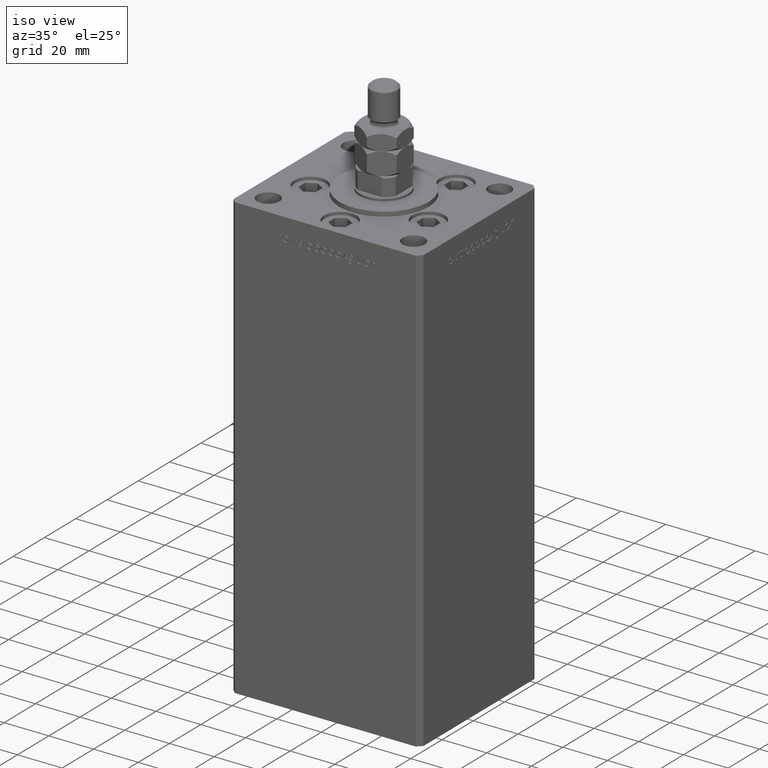
[diagram: clean part render]
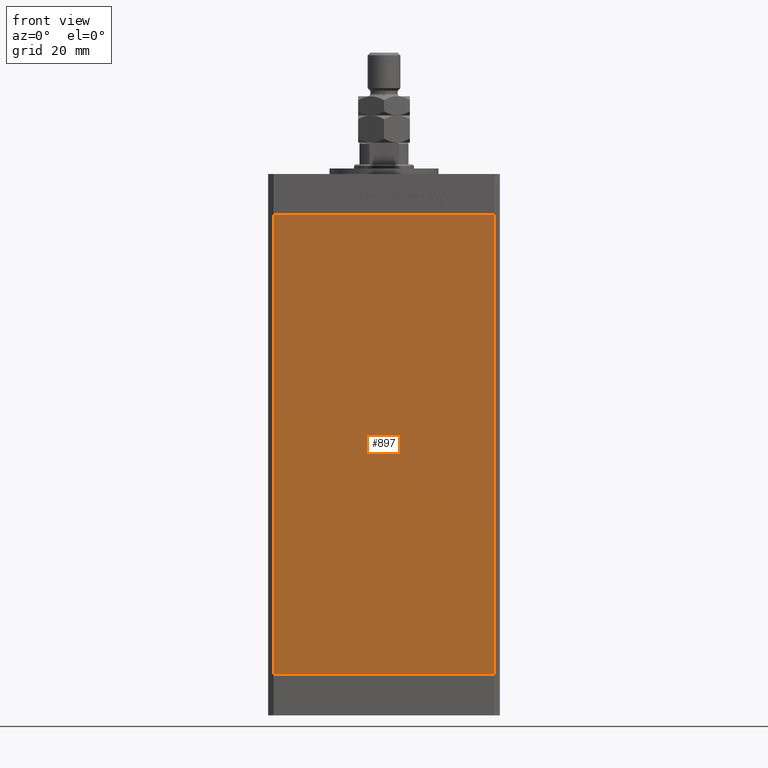
[diagram: tour spotlight — one face highlighted and labeled with its STEP entity id]
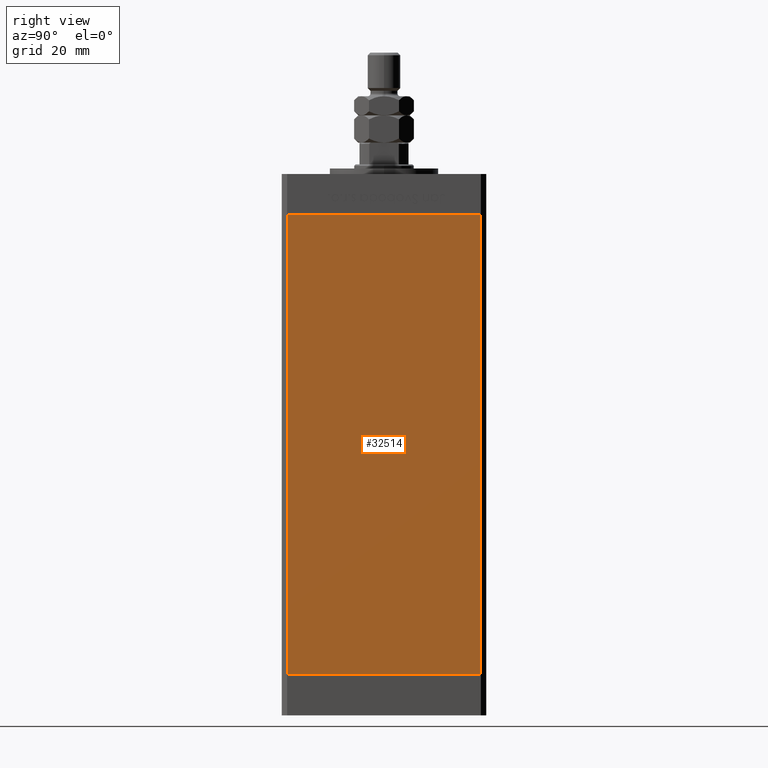
[diagram: tour spotlight — one face highlighted and labeled with its STEP entity id]
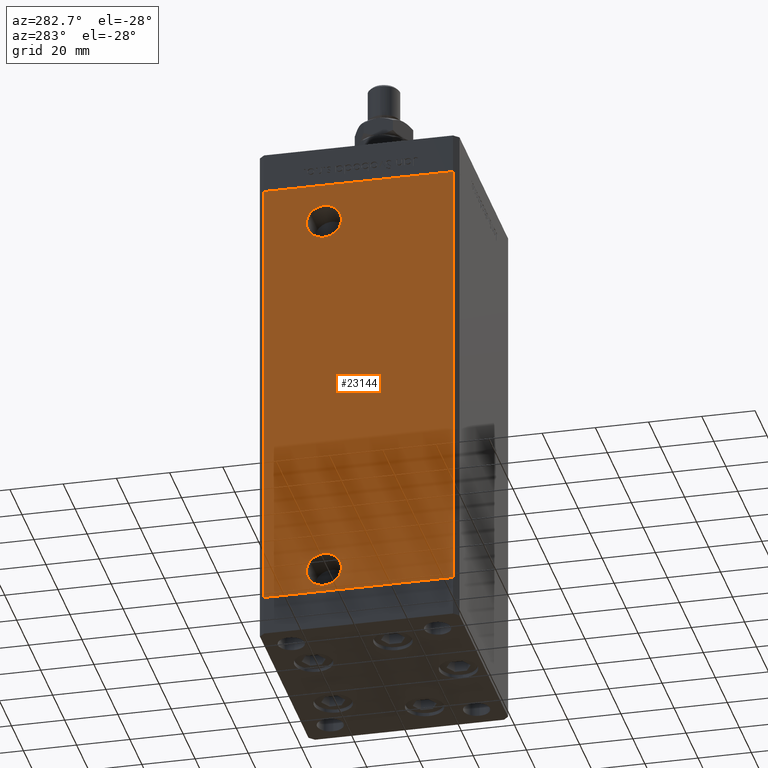
[diagram: tour spotlight — one face highlighted and labeled with its STEP entity id]
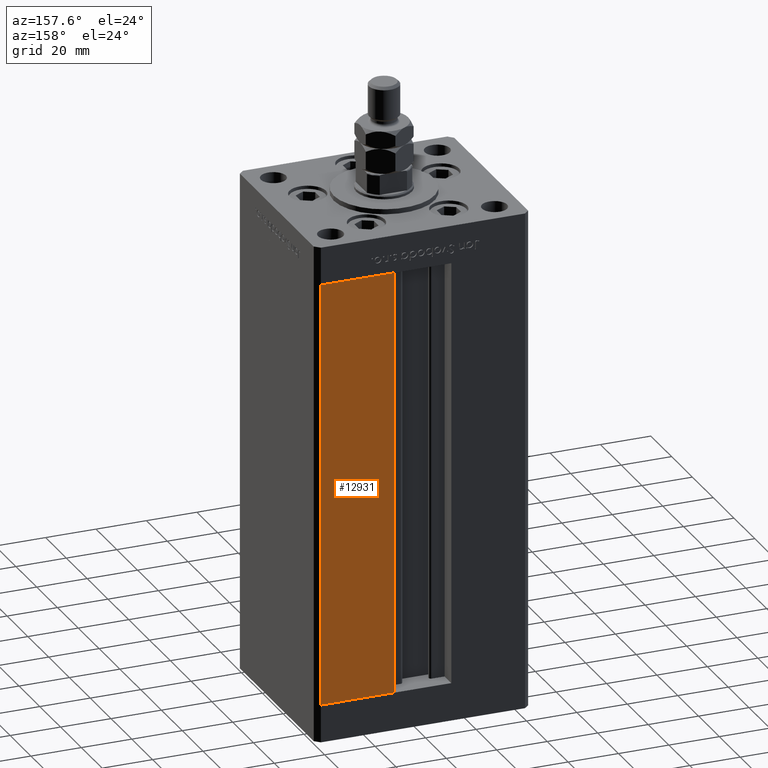
[diagram: tour spotlight — one face highlighted and labeled with its STEP entity id]
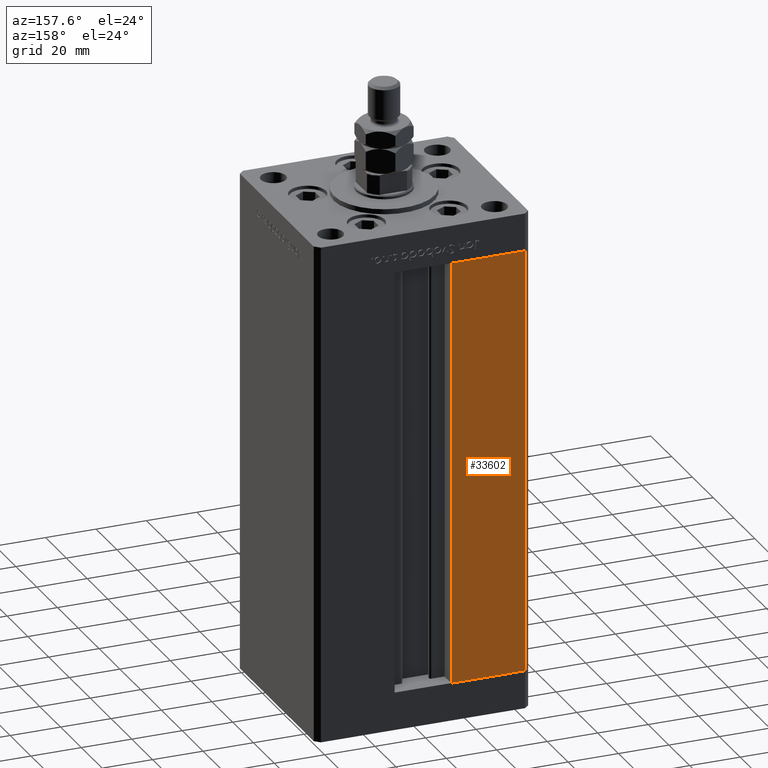
[diagram: tour spotlight — one face highlighted and labeled with its STEP entity id]
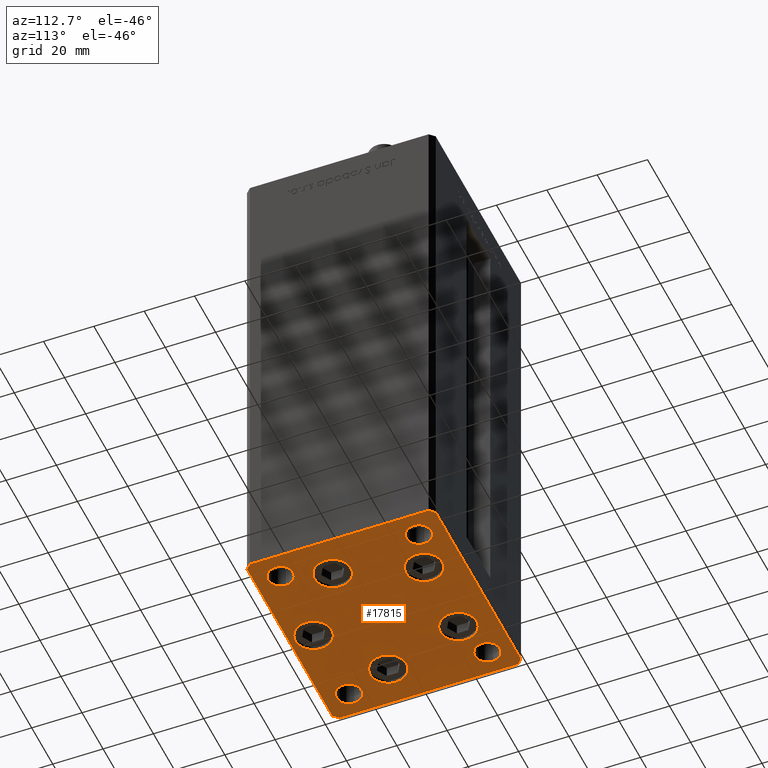
[diagram: tour spotlight — one face highlighted and labeled with its STEP entity id]
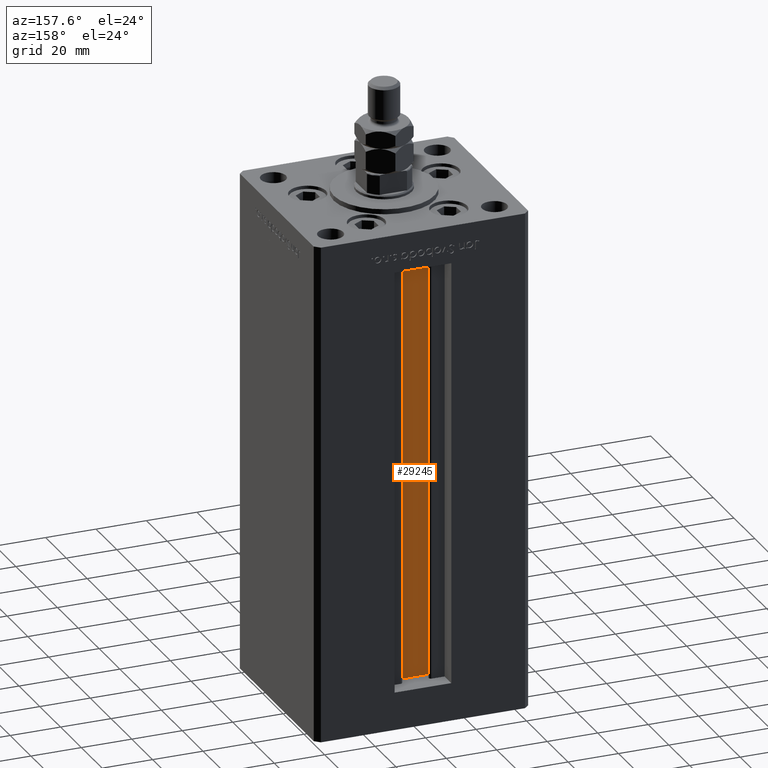
[diagram: tour spotlight — one face highlighted and labeled with its STEP entity id]
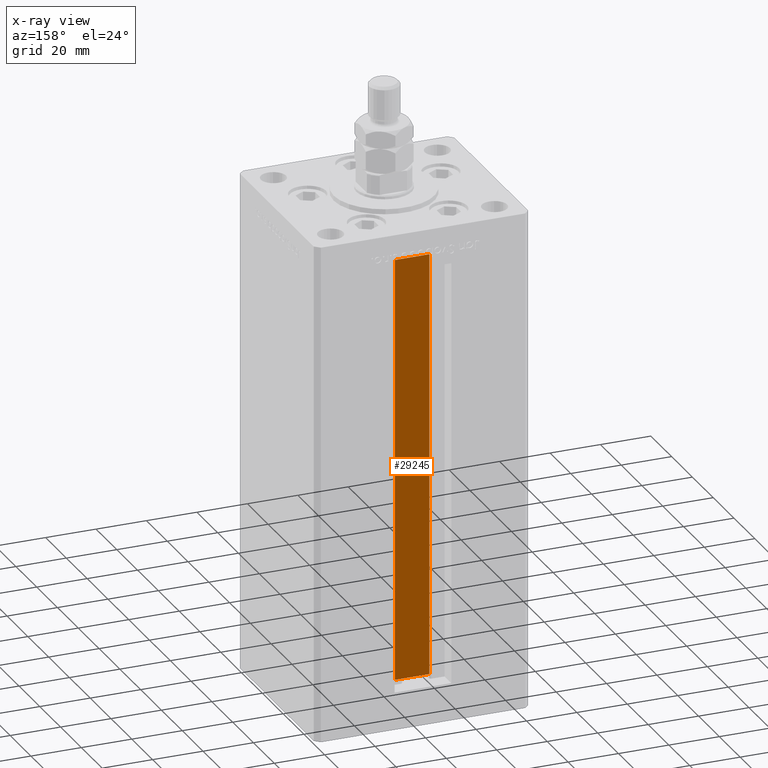
[diagram: x-ray of the same camera — body ghosted, this tour face saturated]
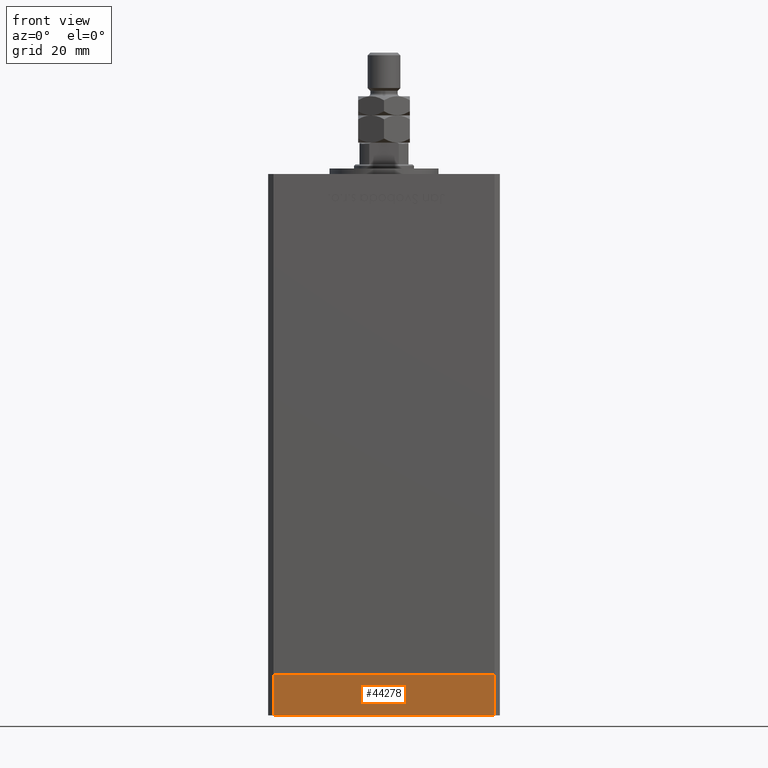
[diagram: tour spotlight — one face highlighted and labeled with its STEP entity id]
A machine part: a face-by-face anatomy tour. The part has 1232 B-rep faces; the first image is the clean iso view, then the 8 largest visible faces are spotlighted one at a time (largest first), each with its STEP entity span.

Face 1 — front view, entity #897. In plain terms, the highlighted planar face has unit normal (0, 1, 0).
Definition (entity closure, byte-faithful):
#897 = ADVANCED_FACE ( 'NONE', ( #30156 ), #22017, .F. ) ;
#1593 = CARTESIAN_POINT ( 'NONE',  ( -40.49999999999998579, -37.50000000000000711, 168.5000000000000000 ) ) ;
#1617 = DIRECTION ( 'NONE',  ( 0.000000000000000000, 1.000000000000000000, 0.000000000000000000 ) ) ;
#1962 = ORIENTED_EDGE ( 'NONE', *, *, #5813, .T. ) ;
#3780 = CARTESIAN_POINT ( 'NONE',  ( 40.49999999999998579, -37.50000000000000711, 168.5000000000000000 ) ) ;
#4279 = EDGE_CURVE ( 'NONE', #39807, #47265, #10646, .T. ) ;
#5813 = EDGE_CURVE ( 'NONE', #7280, #9759, #37702, .T. ) ;
#6865 = EDGE_CURVE ( 'NONE', #39807, #7280, #30132, .T. ) ;
#7280 = VERTEX_POINT ( 'NONE', #22461 ) ;
#7915 = ORIENTED_EDGE ( 'NONE', *, *, #4279, .F. ) ;
#9183 = VECTOR ( 'NONE', #27234, 1000.000000000000000 ) ;
#9759 = VERTEX_POINT ( 'NONE', #50339 ) ;
#10554 = DIRECTION ( 'NONE',  ( -0.000000000000000000, -0.000000000000000000, -1.000000000000000000 ) ) ;
#10646 = LINE ( 'NONE', #39722, #9183 ) ;
#12746 = VECTOR ( 'NONE', #10554, 1000.000000000000000 ) ;
#18947 = DIRECTION ( 'NONE',  ( 1.000000000000000000, 0.000000000000000000, 0.000000000000000000 ) ) ;
#20357 = CARTESIAN_POINT ( 'NONE',  ( -40.49999999999998579, -37.50000000000000711, 168.5000000000000000 ) ) ;
#21708 = EDGE_CURVE ( 'NONE', #47265, #9759, #22745, .T. ) ;
#22017 = PLANE ( 'NONE',  #28154 ) ;
#22461 = CARTESIAN_POINT ( 'NONE',  ( -40.49999999999998579, -37.50000000000000711, 0.000000000000000000 ) ) ;
#22745 = LINE ( 'NONE', #31443, #33858 ) ;
#24844 = ORIENTED_EDGE ( 'NONE', *, *, #21708, .F. ) ;
#27234 = DIRECTION ( 'NONE',  ( 1.000000000000000000, 0.000000000000000000, 0.000000000000000000 ) ) ;
#28154 = AXIS2_PLACEMENT_3D ( 'NONE', #50792, #1617, #38584 ) ;
#30132 = LINE ( 'NONE', #1593, #12746 ) ;
#30156 = FACE_OUTER_BOUND ( 'NONE', #30641, .T. ) ;
#30641 = EDGE_LOOP ( 'NONE', ( #1962, #24844, #7915, #36058 ) ) ;
#31443 = CARTESIAN_POINT ( 'NONE',  ( 40.49999999999998579, -37.50000000000000711, 168.5000000000000000 ) ) ;
#33858 = VECTOR ( 'NONE', #51526, 1000.000000000000000 ) ;
#36058 = ORIENTED_EDGE ( 'NONE', *, *, #6865, .T. ) ;
#37702 = LINE ( 'NONE', #50190, #52634 ) ;
#38584 = DIRECTION ( 'NONE',  ( 0.000000000000000000, -0.000000000000000000, 1.000000000000000000 ) ) ;
#39722 = CARTESIAN_POINT ( 'NONE',  ( -40.49999999999998579, -37.50000000000000711, 168.5000000000000000 ) ) ;
#39807 = VERTEX_POINT ( 'NONE', #20357 ) ;
#47265 = VERTEX_POINT ( 'NONE', #3780 ) ;
#50190 = CARTESIAN_POINT ( 'NONE',  ( -40.49999999999998579, -37.50000000000000711, 0.000000000000000000 ) ) ;
#50339 = CARTESIAN_POINT ( 'NONE',  ( 40.49999999999998579, -37.50000000000000711, 0.000000000000000000 ) ) ;
#50792 = CARTESIAN_POINT ( 'NONE',  ( -40.49999999999998579, -37.50000000000000711, 168.5000000000000000 ) ) ;
#51526 = DIRECTION ( 'NONE',  ( -0.000000000000000000, -0.000000000000000000, -1.000000000000000000 ) ) ;
#52634 = VECTOR ( 'NONE', #18947, 1000.000000000000000 ) ;

Face 2 — right view, entity #32514. In plain terms, the highlighted planar face has unit normal (1, -0, 0).
Definition (entity closure, byte-faithful):
#1979 = AXIS2_PLACEMENT_3D ( 'NONE', #12033, #27828, #15858 ) ;
#3213 = VERTEX_POINT ( 'NONE', #35743 ) ;
#3772 = CARTESIAN_POINT ( 'NONE',  ( 42.50000000000000711, 35.50000000000001421, 168.5000000000000000 ) ) ;
#5772 = EDGE_LOOP ( 'NONE', ( #48135, #46188, #31139, #34539 ) ) ;
#11031 = VERTEX_POINT ( 'NONE', #3772 ) ;
#11350 = VECTOR ( 'NONE', #38224, 1000.000000000000000 ) ;
#12033 = CARTESIAN_POINT ( 'NONE',  ( 42.50000000000000711, 35.50000000000001421, 168.5000000000000000 ) ) ;
#13129 = LINE ( 'NONE', #13661, #24133 ) ;
#13136 = CARTESIAN_POINT ( 'NONE',  ( 42.50000000000000711, 35.50000000000001421, 0.000000000000000000 ) ) ;
#13661 = CARTESIAN_POINT ( 'NONE',  ( 42.50000000000000711, 35.50000000000001421, 168.5000000000000000 ) ) ;
#15404 = VECTOR ( 'NONE', #28162, 1000.000000000000000 ) ;
#15858 = DIRECTION ( 'NONE',  ( 2.931927001650941360E-16, 1.000000000000000000, 0.000000000000000000 ) ) ;
#24133 = VECTOR ( 'NONE', #29714, 1000.000000000000000 ) ;
#24873 = CARTESIAN_POINT ( 'NONE',  ( 42.50000000000000711, 35.50000000000001421, 168.5000000000000000 ) ) ;
#25097 = EDGE_CURVE ( 'NONE', #35253, #31384, #36611, .T. ) ;
#26006 = CARTESIAN_POINT ( 'NONE',  ( 42.49999999999998579, -35.50000000000000711, 168.5000000000000000 ) ) ;
#26787 = CARTESIAN_POINT ( 'NONE',  ( 42.49999999999998579, -35.50000000000000711, 0.000000000000000000 ) ) ;
#27828 = DIRECTION ( 'NONE',  ( 1.000000000000000000, -2.931927001650941360E-16, 0.000000000000000000 ) ) ;
#28162 = DIRECTION ( 'NONE',  ( -0.000000000000000000, -0.000000000000000000, -1.000000000000000000 ) ) ;
#29714 = DIRECTION ( 'NONE',  ( -2.931927001650941360E-16, -1.000000000000000000, 0.000000000000000000 ) ) ;
#31139 = ORIENTED_EDGE ( 'NONE', *, *, #46722, .T. ) ;
#31384 = VERTEX_POINT ( 'NONE', #26787 ) ;
#32514 = ADVANCED_FACE ( 'NONE', ( #38228 ), #34166, .T. ) ;
#33980 = VECTOR ( 'NONE', #36077, 1000.000000000000000 ) ;
#34166 = PLANE ( 'NONE',  #1979 ) ;
#34539 = ORIENTED_EDGE ( 'NONE', *, *, #53604, .T. ) ;
#35253 = VERTEX_POINT ( 'NONE', #51276 ) ;
#35743 = CARTESIAN_POINT ( 'NONE',  ( 42.49999999999998579, -35.50000000000000711, 168.5000000000000000 ) ) ;
#36077 = DIRECTION ( 'NONE',  ( -2.931927001650941360E-16, -1.000000000000000000, 0.000000000000000000 ) ) ;
#36611 = LINE ( 'NONE', #13136, #33980 ) ;
#38224 = DIRECTION ( 'NONE',  ( -0.000000000000000000, -0.000000000000000000, -1.000000000000000000 ) ) ;
#38228 = FACE_OUTER_BOUND ( 'NONE', #5772, .T. ) ;
#40384 = LINE ( 'NONE', #24873, #15404 ) ;
#41311 = EDGE_CURVE ( 'NONE', #11031, #35253, #40384, .T. ) ;
#46188 = ORIENTED_EDGE ( 'NONE', *, *, #41311, .F. ) ;
#46722 = EDGE_CURVE ( 'NONE', #11031, #3213, #13129, .T. ) ;
#47167 = LINE ( 'NONE', #26006, #11350 ) ;
#48135 = ORIENTED_EDGE ( 'NONE', *, *, #25097, .F. ) ;
#51276 = CARTESIAN_POINT ( 'NONE',  ( 42.50000000000000711, 35.50000000000001421, 0.000000000000000000 ) ) ;
#53604 = EDGE_CURVE ( 'NONE', #3213, #31384, #47167, .T. ) ;

Face 3 — auxiliary view, entity #23144. In plain terms, the highlighted planar face has unit normal (1, 0, 0).
Definition (entity closure, byte-faithful):
#14 = ORIENTED_EDGE ( 'NONE', *, *, #48395, .F. ) ;
#534 = DIRECTION ( 'NONE',  ( 0.000000000000000000, -1.000000000000000000, 0.000000000000000000 ) ) ;
#782 = CARTESIAN_POINT ( 'NONE',  ( -42.49999999999999289, 13.00000000000000000, 153.5000000000000284 ) ) ;
#920 = AXIS2_PLACEMENT_3D ( 'NONE', #782, #17634, #2331 ) ;
#2329 = DIRECTION ( 'NONE',  ( -1.000000000000000000, -2.275047181608927644E-16, 0.000000000000000000 ) ) ;
#2331 = DIRECTION ( 'NONE',  ( 0.000000000000000000, -1.000000000000000000, 0.000000000000000000 ) ) ;
#2557 = LINE ( 'NONE', #26480, #50547 ) ;
#3545 = DIRECTION ( 'NONE',  ( -2.931927001650941360E-16, 1.000000000000000000, 0.000000000000000000 ) ) ;
#4441 = EDGE_CURVE ( 'NONE', #7879, #8162, #17879, .T. ) ;
#4492 = CARTESIAN_POINT ( 'NONE',  ( -42.49999999999998579, -35.50000000000000711, 168.5000000000000000 ) ) ;
#5331 = VERTEX_POINT ( 'NONE', #8708 ) ;
#6552 = FACE_OUTER_BOUND ( 'NONE', #52056, .T. ) ;
#6592 = EDGE_LOOP ( 'NONE', ( #10570, #27332 ) ) ;
#7026 = CARTESIAN_POINT ( 'NONE',  ( -42.50000000000000711, 35.50000000000001421, 0.000000000000000000 ) ) ;
#7068 = LINE ( 'NONE', #14681, #35333 ) ;
#7824 = DIRECTION ( 'NONE',  ( -1.000000000000000000, -2.275047181608927644E-16, 0.000000000000000000 ) ) ;
#7879 = VERTEX_POINT ( 'NONE', #40717 ) ;
#8162 = VERTEX_POINT ( 'NONE', #33563 ) ;
#8696 = CARTESIAN_POINT ( 'NONE',  ( -42.49999999999999289, 6.419999999999983942, 153.5000000000000284 ) ) ;
#8708 = CARTESIAN_POINT ( 'NONE',  ( -42.49999999999999289, 19.58000000000001251, 153.5000000000000284 ) ) ;
#8760 = VERTEX_POINT ( 'NONE', #8696 ) ;
#10570 = ORIENTED_EDGE ( 'NONE', *, *, #22388, .F. ) ;
#10625 = AXIS2_PLACEMENT_3D ( 'NONE', #28752, #7824, #12678 ) ;
#10894 = FACE_BOUND ( 'NONE', #43015, .T. ) ;
#12678 = DIRECTION ( 'NONE',  ( 0.000000000000000000, -1.000000000000000000, 0.000000000000000000 ) ) ;
#13200 = CIRCLE ( 'NONE', #10625, 6.580000000000015170 ) ;
#14269 = DIRECTION ( 'NONE',  ( -0.000000000000000000, -0.000000000000000000, -1.000000000000000000 ) ) ;
#14681 = CARTESIAN_POINT ( 'NONE',  ( -42.50000000000000711, 35.50000000000001421, 168.5000000000000000 ) ) ;
#14881 = ORIENTED_EDGE ( 'NONE', *, *, #33809, .T. ) ;
#15201 = VERTEX_POINT ( 'NONE', #50895 ) ;
#16524 = ORIENTED_EDGE ( 'NONE', *, *, #43733, .F. ) ;
#17634 = DIRECTION ( 'NONE',  ( -1.000000000000000000, -2.275047181608927644E-16, 0.000000000000000000 ) ) ;
#17879 = CIRCLE ( 'NONE', #23103, 6.580000000000003624 ) ;
#17980 = CARTESIAN_POINT ( 'NONE',  ( -42.49999999999998579, -35.50000000000000711, 168.5000000000000000 ) ) ;
#18638 = DIRECTION ( 'NONE',  ( 0.000000000000000000, -1.000000000000000000, 0.000000000000000000 ) ) ;
#18833 = ORIENTED_EDGE ( 'NONE', *, *, #4441, .F. ) ;
#19028 = DIRECTION ( 'NONE',  ( 2.931927001650941360E-16, -1.000000000000000000, 0.000000000000000000 ) ) ;
#19603 = ORIENTED_EDGE ( 'NONE', *, *, #43233, .F. ) ;
#20761 = AXIS2_PLACEMENT_3D ( 'NONE', #22456, #2329, #18638 ) ;
#22388 = EDGE_CURVE ( 'NONE', #8760, #5331, #35660, .T. ) ;
#22456 = CARTESIAN_POINT ( 'NONE',  ( -42.49999999999999289, 13.00000000000000000, 9.000000000000000000 ) ) ;
#23103 = AXIS2_PLACEMENT_3D ( 'NONE', #41574, #51541, #534 ) ;
#23144 = ADVANCED_FACE ( 'NONE', ( #10894, #40786, #6552 ), #31580, .F. ) ;
#25691 = LINE ( 'NONE', #4492, #30089 ) ;
#26249 = LINE ( 'NONE', #51494, #49389 ) ;
#26480 = CARTESIAN_POINT ( 'NONE',  ( -42.50000000000000711, 35.50000000000001421, 0.000000000000000000 ) ) ;
#26697 = VERTEX_POINT ( 'NONE', #7026 ) ;
#26799 = EDGE_CURVE ( 'NONE', #5331, #8760, #13200, .T. ) ;
#27063 = CARTESIAN_POINT ( 'NONE',  ( -42.50000000000000711, 35.50000000000001421, 168.5000000000000000 ) ) ;
#27332 = ORIENTED_EDGE ( 'NONE', *, *, #26799, .F. ) ;
#28752 = CARTESIAN_POINT ( 'NONE',  ( -42.49999999999999289, 13.00000000000000000, 153.5000000000000284 ) ) ;
#30089 = VECTOR ( 'NONE', #53418, 1000.000000000000000 ) ;
#31580 = PLANE ( 'NONE',  #45216 ) ;
#31819 = ORIENTED_EDGE ( 'NONE', *, *, #50274, .T. ) ;
#32113 = DIRECTION ( 'NONE',  ( 1.000000000000000000, 2.931927001650941360E-16, -0.000000000000000000 ) ) ;
#33194 = VERTEX_POINT ( 'NONE', #17980 ) ;
#33563 = CARTESIAN_POINT ( 'NONE',  ( -42.49999999999999289, 6.419999999999996376, 9.000000000000000000 ) ) ;
#33809 = EDGE_CURVE ( 'NONE', #26697, #15201, #2557, .T. ) ;
#35333 = VECTOR ( 'NONE', #19028, 1000.000000000000000 ) ;
#35660 = CIRCLE ( 'NONE', #920, 6.580000000000015170 ) ;
#37221 = CIRCLE ( 'NONE', #20761, 6.580000000000003624 ) ;
#40512 = CARTESIAN_POINT ( 'NONE',  ( -42.50000000000000711, 35.50000000000001421, 168.5000000000000000 ) ) ;
#40717 = CARTESIAN_POINT ( 'NONE',  ( -42.49999999999999289, 19.58000000000000540, 9.000000000000000000 ) ) ;
#40786 = FACE_BOUND ( 'NONE', #6592, .T. ) ;
#41574 = CARTESIAN_POINT ( 'NONE',  ( -42.49999999999999289, 13.00000000000000000, 9.000000000000000000 ) ) ;
#43015 = EDGE_LOOP ( 'NONE', ( #14, #18833 ) ) ;
#43233 = EDGE_CURVE ( 'NONE', #33194, #15201, #25691, .T. ) ;
#43733 = EDGE_CURVE ( 'NONE', #45143, #33194, #7068, .T. ) ;
#45143 = VERTEX_POINT ( 'NONE', #27063 ) ;
#45216 = AXIS2_PLACEMENT_3D ( 'NONE', #40512, #32113, #3545 ) ;
#48395 = EDGE_CURVE ( 'NONE', #8162, #7879, #37221, .T. ) ;
#49389 = VECTOR ( 'NONE', #14269, 1000.000000000000000 ) ;
#50274 = EDGE_CURVE ( 'NONE', #45143, #26697, #26249, .T. ) ;
#50547 = VECTOR ( 'NONE', #52277, 1000.000000000000000 ) ;
#50895 = CARTESIAN_POINT ( 'NONE',  ( -42.49999999999998579, -35.50000000000000711, 0.000000000000000000 ) ) ;
#51494 = CARTESIAN_POINT ( 'NONE',  ( -42.50000000000000711, 35.50000000000001421, 168.5000000000000000 ) ) ;
#51541 = DIRECTION ( 'NONE',  ( -1.000000000000000000, -2.275047181608927644E-16, 0.000000000000000000 ) ) ;
#52056 = EDGE_LOOP ( 'NONE', ( #14881, #19603, #16524, #31819 ) ) ;
#52277 = DIRECTION ( 'NONE',  ( 2.931927001650941360E-16, -1.000000000000000000, 0.000000000000000000 ) ) ;
#53418 = DIRECTION ( 'NONE',  ( -0.000000000000000000, -0.000000000000000000, -1.000000000000000000 ) ) ;

Face 4 — auxiliary view, entity #12931. In plain terms, the highlighted planar face has unit normal (-0, -1, 0).
Definition (entity closure, byte-faithful):
#209 = EDGE_CURVE ( 'NONE', #1368, #11640, #18868, .T. ) ;
#1368 = VERTEX_POINT ( 'NONE', #7195 ) ;
#3488 = VECTOR ( 'NONE', #35016, 1000.000000000000000 ) ;
#6325 = DIRECTION ( 'NONE',  ( -1.000000000000000000, 2.372271420139223331E-16, 0.000000000000000000 ) ) ;
#6379 = VECTOR ( 'NONE', #31389, 1000.000000000000000 ) ;
#7195 = CARTESIAN_POINT ( 'NONE',  ( 40.50000000000000000, 37.50000000000000711, 168.5000000000000000 ) ) ;
#7602 = VECTOR ( 'NONE', #6325, 1000.000000000000000 ) ;
#10120 = LINE ( 'NONE', #10930, #7602 ) ;
#10930 = CARTESIAN_POINT ( 'NONE',  ( -11.25000000000000000, 37.50000000000000000, 0.000000000000000000 ) ) ;
#11640 = VERTEX_POINT ( 'NONE', #42411 ) ;
#12931 = ADVANCED_FACE ( 'NONE', ( #18379 ), #26531, .F. ) ;
#13837 = CARTESIAN_POINT ( 'NONE',  ( -11.25000000000000000, 37.50000000000000000, 168.5000000000000000 ) ) ;
#13891 = EDGE_LOOP ( 'NONE', ( #37017, #52498, #33318, #46314 ) ) ;
#18115 = DIRECTION ( 'NONE',  ( 1.000000000000000000, -2.372271420139223331E-16, 0.000000000000000000 ) ) ;
#18379 = FACE_OUTER_BOUND ( 'NONE', #13891, .T. ) ;
#18868 = LINE ( 'NONE', #35444, #6379 ) ;
#20547 = EDGE_CURVE ( 'NONE', #22869, #47334, #22802, .T. ) ;
#22546 = LINE ( 'NONE', #13837, #32250 ) ;
#22802 = LINE ( 'NONE', #39627, #3488 ) ;
#22869 = VERTEX_POINT ( 'NONE', #29145 ) ;
#24237 = EDGE_CURVE ( 'NONE', #47334, #1368, #22546, .T. ) ;
#24973 = CARTESIAN_POINT ( 'NONE',  ( 11.24999999999999289, 37.50000000000000000, 168.5000000000000000 ) ) ;
#25960 = AXIS2_PLACEMENT_3D ( 'NONE', #47168, #39032, #18115 ) ;
#26531 = PLANE ( 'NONE',  #25960 ) ;
#29145 = CARTESIAN_POINT ( 'NONE',  ( 11.25000000000000000, 37.50000000000000000, 0.000000000000000000 ) ) ;
#31389 = DIRECTION ( 'NONE',  ( -0.000000000000000000, -0.000000000000000000, -1.000000000000000000 ) ) ;
#32250 = VECTOR ( 'NONE', #43449, 1000.000000000000000 ) ;
#33318 = ORIENTED_EDGE ( 'NONE', *, *, #24237, .T. ) ;
#35016 = DIRECTION ( 'NONE',  ( -0.000000000000000000, -0.000000000000000000, 1.000000000000000000 ) ) ;
#35444 = CARTESIAN_POINT ( 'NONE',  ( 40.50000000000000000, 37.50000000000000711, 168.5000000000000000 ) ) ;
#37017 = ORIENTED_EDGE ( 'NONE', *, *, #40618, .T. ) ;
#39032 = DIRECTION ( 'NONE',  ( -2.372271420139223331E-16, -1.000000000000000000, 0.000000000000000000 ) ) ;
#39627 = CARTESIAN_POINT ( 'NONE',  ( 11.25000000000000000, 37.50000000000000000, 0.000000000000000000 ) ) ;
#40618 = EDGE_CURVE ( 'NONE', #11640, #22869, #10120, .T. ) ;
#42411 = CARTESIAN_POINT ( 'NONE',  ( 40.50000000000000000, 37.50000000000000711, 0.000000000000000000 ) ) ;
#43449 = DIRECTION ( 'NONE',  ( 1.000000000000000000, 0.000000000000000000, 0.000000000000000000 ) ) ;
#46314 = ORIENTED_EDGE ( 'NONE', *, *, #209, .T. ) ;
#47168 = CARTESIAN_POINT ( 'NONE',  ( -11.25000000000000000, 37.50000000000000000, 168.5000000000000000 ) ) ;
#47334 = VERTEX_POINT ( 'NONE', #24973 ) ;
#52498 = ORIENTED_EDGE ( 'NONE', *, *, #20547, .T. ) ;

Face 5 — auxiliary view, entity #33602. In plain terms, the highlighted planar face has unit normal (-0, -1, 0).
Definition (entity closure, byte-faithful):
#406 = EDGE_CURVE ( 'NONE', #1634, #14026, #16931, .T. ) ;
#1105 = AXIS2_PLACEMENT_3D ( 'NONE', #35768, #52335, #25805 ) ;
#1177 = VECTOR ( 'NONE', #21276, 1000.000000000000000 ) ;
#1634 = VERTEX_POINT ( 'NONE', #30246 ) ;
#3930 = EDGE_LOOP ( 'NONE', ( #40440, #22800, #10103, #12851 ) ) ;
#3952 = EDGE_CURVE ( 'NONE', #1634, #42781, #42507, .T. ) ;
#5284 = CARTESIAN_POINT ( 'NONE',  ( -11.25000000000000000, 37.50000000000000000, 0.000000000000000000 ) ) ;
#6117 = CARTESIAN_POINT ( 'NONE',  ( -40.50000000000000000, 37.50000000000000711, 0.000000000000000000 ) ) ;
#7581 = CARTESIAN_POINT ( 'NONE',  ( -11.25000000000000000, 37.50000000000000000, 168.5000000000000000 ) ) ;
#9186 = DIRECTION ( 'NONE',  ( 1.000000000000000000, 0.000000000000000000, 0.000000000000000000 ) ) ;
#9299 = VECTOR ( 'NONE', #9186, 1000.000000000000000 ) ;
#10103 = ORIENTED_EDGE ( 'NONE', *, *, #406, .T. ) ;
#10495 = PLANE ( 'NONE',  #1105 ) ;
#12658 = CARTESIAN_POINT ( 'NONE',  ( -40.50000000000000000, 37.50000000000000711, 168.5000000000000000 ) ) ;
#12851 = ORIENTED_EDGE ( 'NONE', *, *, #46157, .F. ) ;
#14026 = VERTEX_POINT ( 'NONE', #6117 ) ;
#15108 = DIRECTION ( 'NONE',  ( -0.000000000000000000, -0.000000000000000000, -1.000000000000000000 ) ) ;
#16931 = LINE ( 'NONE', #37040, #1177 ) ;
#21276 = DIRECTION ( 'NONE',  ( -1.000000000000000000, 2.372271420139223331E-16, 0.000000000000000000 ) ) ;
#21877 = DIRECTION ( 'NONE',  ( -0.000000000000000000, -0.000000000000000000, 1.000000000000000000 ) ) ;
#22800 = ORIENTED_EDGE ( 'NONE', *, *, #3952, .F. ) ;
#23015 = FACE_OUTER_BOUND ( 'NONE', #3930, .T. ) ;
#25805 = DIRECTION ( 'NONE',  ( 1.000000000000000000, -2.372271420139223331E-16, 0.000000000000000000 ) ) ;
#26575 = CARTESIAN_POINT ( 'NONE',  ( -11.25000000000000000, 37.50000000000000000, 168.5000000000000000 ) ) ;
#28472 = VECTOR ( 'NONE', #15108, 1000.000000000000000 ) ;
#30246 = CARTESIAN_POINT ( 'NONE',  ( -11.25000000000000000, 37.50000000000000000, 0.000000000000000000 ) ) ;
#33602 = ADVANCED_FACE ( 'NONE', ( #23015 ), #10495, .F. ) ;
#35768 = CARTESIAN_POINT ( 'NONE',  ( -11.25000000000000000, 37.50000000000000000, 168.5000000000000000 ) ) ;
#36023 = LINE ( 'NONE', #52067, #28472 ) ;
#37040 = CARTESIAN_POINT ( 'NONE',  ( -11.25000000000000000, 37.50000000000000000, 0.000000000000000000 ) ) ;
#40440 = ORIENTED_EDGE ( 'NONE', *, *, #43849, .T. ) ;
#42058 = LINE ( 'NONE', #26575, #9299 ) ;
#42507 = LINE ( 'NONE', #5284, #44759 ) ;
#42781 = VERTEX_POINT ( 'NONE', #7581 ) ;
#43849 = EDGE_CURVE ( 'NONE', #50980, #42781, #42058, .T. ) ;
#44759 = VECTOR ( 'NONE', #21877, 1000.000000000000000 ) ;
#46157 = EDGE_CURVE ( 'NONE', #50980, #14026, #36023, .T. ) ;
#50980 = VERTEX_POINT ( 'NONE', #12658 ) ;
#52067 = CARTESIAN_POINT ( 'NONE',  ( -40.50000000000000000, 37.50000000000000711, 168.5000000000000000 ) ) ;
#52335 = DIRECTION ( 'NONE',  ( -2.372271420139223331E-16, -1.000000000000000000, 0.000000000000000000 ) ) ;

Face 6 — auxiliary view, entity #17815. In plain terms, the highlighted planar face has unit normal (0, 0, -1).
Definition (entity closure, byte-faithful):
#533 = VECTOR ( 'NONE', #2780, 1000.000000000000000 ) ;
#537 = EDGE_CURVE ( 'NONE', #34613, #26013, #42002, .T. ) ;
#546 = CARTESIAN_POINT ( 'NONE',  ( 7.250000000000003553, -28.00000000000000000, 0.000000000000000000 ) ) ;
#611 = CARTESIAN_POINT ( 'NONE',  ( -27.50000000000000000, -27.49999999999999645, 0.000000000000000000 ) ) ;
#737 = CARTESIAN_POINT ( 'NONE',  ( 26.39865316429776954, -9.333333333333330373, 0.000000000000000000 ) ) ;
#787 = ORIENTED_EDGE ( 'NONE', *, *, #42311, .T. ) ;
#802 = CIRCLE ( 'NONE', #19050, 4.999999999999997335 ) ;
#1022 = CARTESIAN_POINT ( 'NONE',  ( -16.32291334290543006, 22.74999999999999645, 0.000000000000000000 ) ) ;
#1137 = ORIENTED_EDGE ( 'NONE', *, *, #36303, .T. ) ;
#1233 = DIRECTION ( 'NONE',  ( -0.000000000000000000, 0.000000000000000000, 1.000000000000000000 ) ) ;
#1276 = ORIENTED_EDGE ( 'NONE', *, *, #18019, .F. ) ;
#1378 = VERTEX_POINT ( 'NONE', #39805 ) ;
#1582 = CARTESIAN_POINT ( 'NONE',  ( -19.14865316429777309, -9.333333333333335702, 0.000000000000000000 ) ) ;
#1848 = EDGE_LOOP ( 'NONE', ( #19694, #41729, #41356, #24467, #32583, #28633, #23129, #19890 ) ) ;
#2046 = VECTOR ( 'NONE', #5044, 1000.000000000000000 ) ;
#2200 = DIRECTION ( 'NONE',  ( 1.000000000000000000, 0.000000000000000000, 0.000000000000000000 ) ) ;
#2293 = AXIS2_PLACEMENT_3D ( 'NONE', #6041, #14737, #43259 ) ;
#2438 = FACE_BOUND ( 'NONE', #18591, .T. ) ;
#2780 = DIRECTION ( 'NONE',  ( -1.000000000000000000, -3.426614273534436165E-16, 0.000000000000000000 ) ) ;
#2859 = DIRECTION ( 'NONE',  ( 0.000000000000000000, -0.000000000000000000, -1.000000000000000000 ) ) ;
#3227 = EDGE_CURVE ( 'NONE', #26013, #34613, #49390, .T. ) ;
#3261 = CIRCLE ( 'NONE', #7609, 7.249999999999999112 ) ;
#3408 = AXIS2_PLACEMENT_3D ( 'NONE', #51350, #14122, #6781 ) ;
#3448 = VECTOR ( 'NONE', #47438, 1000.000000000000114 ) ;
#4209 = VERTEX_POINT ( 'NONE', #47865 ) ;
#4258 = EDGE_CURVE ( 'NONE', #42729, #39766, #43905, .T. ) ;
#4286 = DIRECTION ( 'NONE',  ( 1.000000000000000000, 0.000000000000000000, 0.000000000000000000 ) ) ;
#4562 = VERTEX_POINT ( 'NONE', #39859 ) ;
#4841 = DIRECTION ( 'NONE',  ( 0.000000000000000000, -0.000000000000000000, -1.000000000000000000 ) ) ;
#5044 = DIRECTION ( 'NONE',  ( 1.000000000000000000, 1.713307136767217096E-16, 0.000000000000000000 ) ) ;
#5059 = EDGE_CURVE ( 'NONE', #51816, #38819, #14454, .T. ) ;
#5128 = EDGE_CURVE ( 'NONE', #46048, #41305, #13562, .T. ) ;
#5492 = DIRECTION ( 'NONE',  ( 1.000000000000000000, 0.000000000000000000, 0.000000000000000000 ) ) ;
#5806 = CARTESIAN_POINT ( 'NONE',  ( 9.072913342905424727, 22.75000000000000000, 0.000000000000000000 ) ) ;
#5905 = CARTESIAN_POINT ( 'NONE',  ( 42.50000000000000711, -35.50000000000000000, 0.000000000000000000 ) ) ;
#6041 = CARTESIAN_POINT ( 'NONE',  ( 32.50000000000000000, -27.49999999999999645, 0.000000000000000000 ) ) ;
#6422 = ORIENTED_EDGE ( 'NONE', *, *, #38162, .T. ) ;
#6781 = DIRECTION ( 'NONE',  ( 1.000000000000000000, 0.000000000000000000, 0.000000000000000000 ) ) ;
#6909 = VERTEX_POINT ( 'NONE', #9474 ) ;
#7299 = EDGE_CURVE ( 'NONE', #44612, #6909, #44875, .T. ) ;
#7457 = AXIS2_PLACEMENT_3D ( 'NONE', #22621, #14726, #31322 ) ;
#7609 = AXIS2_PLACEMENT_3D ( 'NONE', #41051, #28562, #16595 ) ;
#8022 = AXIS2_PLACEMENT_3D ( 'NONE', #42068, #4841, #26324 ) ;
#8109 = DIRECTION ( 'NONE',  ( 0.000000000000000000, -0.000000000000000000, -1.000000000000000000 ) ) ;
#8125 = CIRCLE ( 'NONE', #44605, 7.249999999999999112 ) ;
#8700 = EDGE_CURVE ( 'NONE', #29719, #16996, #3261, .T. ) ;
#8836 = CIRCLE ( 'NONE', #23591, 7.249999999999999112 ) ;
#9297 = DIRECTION ( 'NONE',  ( 0.000000000000000000, -0.000000000000000000, -1.000000000000000000 ) ) ;
#9364 = EDGE_CURVE ( 'NONE', #38819, #20097, #37638, .T. ) ;
#9474 = CARTESIAN_POINT ( 'NONE',  ( 37.50000000000000000, 27.49999999999999645, 0.000000000000000000 ) ) ;
#9796 = EDGE_CURVE ( 'NONE', #43248, #42469, #17192, .T. ) ;
#9956 = LINE ( 'NONE', #30899, #3448 ) ;
#10158 = AXIS2_PLACEMENT_3D ( 'NONE', #35757, #27605, #19180 ) ;
#10227 = AXIS2_PLACEMENT_3D ( 'NONE', #1022, #8109, #4286 ) ;
#10382 = CARTESIAN_POINT ( 'NONE',  ( 40.49999999999991473, 37.50000000000000711, 0.000000000000000000 ) ) ;
#10497 = ORIENTED_EDGE ( 'NONE', *, *, #38907, .F. ) ;
#10596 = EDGE_CURVE ( 'NONE', #16996, #29719, #48443, .T. ) ;
#10854 = FACE_BOUND ( 'NONE', #53061, .T. ) ;
#10876 = CARTESIAN_POINT ( 'NONE',  ( 27.50000000000000355, 27.49999999999999645, 0.000000000000000000 ) ) ;
#11426 = EDGE_LOOP ( 'NONE', ( #29103, #48794 ) ) ;
#11854 = AXIS2_PLACEMENT_3D ( 'NONE', #49391, #41510, #24688 ) ;
#12654 = CARTESIAN_POINT ( 'NONE',  ( -40.49999999999999289, -37.50000000000002132, 0.000000000000000000 ) ) ;
#13562 = CIRCLE ( 'NONE', #2293, 4.999999999999997335 ) ;
#13598 = CIRCLE ( 'NONE', #17955, 7.249999999999999112 ) ;
#13784 = EDGE_CURVE ( 'NONE', #25114, #51816, #9956, .T. ) ;
#13914 = DIRECTION ( 'NONE',  ( 0.000000000000000000, -0.000000000000000000, -1.000000000000000000 ) ) ;
#14122 = DIRECTION ( 'NONE',  ( -0.000000000000000000, 0.000000000000000000, 1.000000000000000000 ) ) ;
#14139 = LINE ( 'NONE', #19305, #43235 ) ;
#14386 = FACE_BOUND ( 'NONE', #48341, .T. ) ;
#14454 = LINE ( 'NONE', #10382, #533 ) ;
#14726 = DIRECTION ( 'NONE',  ( 0.000000000000000000, -0.000000000000000000, -1.000000000000000000 ) ) ;
#14737 = DIRECTION ( 'NONE',  ( 0.000000000000000000, -0.000000000000000000, -1.000000000000000000 ) ) ;
#16595 = DIRECTION ( 'NONE',  ( 1.000000000000000000, 0.000000000000000000, 0.000000000000000000 ) ) ;
#16649 = CARTESIAN_POINT ( 'NONE',  ( -42.50000000000000000, -35.50000000000000711, 0.000000000000000000 ) ) ;
#16996 = VERTEX_POINT ( 'NONE', #51748 ) ;
#17192 = CIRCLE ( 'NONE', #41493, 7.249999999999999112 ) ;
#17259 = ORIENTED_EDGE ( 'NONE', *, *, #8700, .T. ) ;
#17730 = DIRECTION ( 'NONE',  ( 1.000000000000000000, 0.000000000000000000, 0.000000000000000000 ) ) ;
#17815 = ADVANCED_FACE ( 'NONE', ( #10854, #46998, #39662, #51618, #14386, #17937, #2438, #34785, #51076, #30446 ), #30987, .T. ) ;
#17937 = FACE_BOUND ( 'NONE', #23398, .T. ) ;
#17955 = AXIS2_PLACEMENT_3D ( 'NONE', #737, #25214, #46918 ) ;
#18019 = EDGE_CURVE ( 'NONE', #6909, #44612, #802, .T. ) ;
#18283 = DIRECTION ( 'NONE',  ( 0.000000000000000000, -0.000000000000000000, -1.000000000000000000 ) ) ;
#18591 = EDGE_LOOP ( 'NONE', ( #48404, #26351 ) ) ;
#19050 = AXIS2_PLACEMENT_3D ( 'NONE', #38994, #1233, #26234 ) ;
#19180 = DIRECTION ( 'NONE',  ( 1.000000000000000000, 0.000000000000000000, 0.000000000000000000 ) ) ;
#19191 = DIRECTION ( 'NONE',  ( 0.7071067811865474617, 0.7071067811865474617, 0.000000000000000000 ) ) ;
#19305 = CARTESIAN_POINT ( 'NONE',  ( -42.50000000000000000, -35.50000000000000711, 0.000000000000000000 ) ) ;
#19694 = ORIENTED_EDGE ( 'NONE', *, *, #47165, .T. ) ;
#19890 = ORIENTED_EDGE ( 'NONE', *, *, #32411, .T. ) ;
#20097 = VERTEX_POINT ( 'NONE', #48161 ) ;
#20891 = DIRECTION ( 'NONE',  ( -0.000000000000000000, 0.000000000000000000, 1.000000000000000000 ) ) ;
#20904 = CARTESIAN_POINT ( 'NONE',  ( -37.50000000000000711, 27.50000000000000355, 0.000000000000000000 ) ) ;
#21161 = CARTESIAN_POINT ( 'NONE',  ( -32.50000000000000000, 27.50000000000000355, 0.000000000000000000 ) ) ;
#21389 = LINE ( 'NONE', #42023, #48813 ) ;
#21408 = AXIS2_PLACEMENT_3D ( 'NONE', #45727, #25899, #50336 ) ;
#22087 = CARTESIAN_POINT ( 'NONE',  ( -26.39865316429776954, -9.333333333333337478, 0.000000000000000000 ) ) ;
#22369 = ORIENTED_EDGE ( 'NONE', *, *, #36855, .T. ) ;
#22621 = CARTESIAN_POINT ( 'NONE',  ( 3.429011037612589276E-15, -28.00000000000000000, 0.000000000000000000 ) ) ;
#22855 = VECTOR ( 'NONE', #19191, 1000.000000000000114 ) ;
#23129 = ORIENTED_EDGE ( 'NONE', *, *, #9364, .T. ) ;
#23178 = VECTOR ( 'NONE', #33912, 1000.000000000000000 ) ;
#23398 = EDGE_LOOP ( 'NONE', ( #1276, #44025 ) ) ;
#23520 = CARTESIAN_POINT ( 'NONE',  ( -32.50000000000000000, -27.49999999999999645, 0.000000000000000000 ) ) ;
#23591 = AXIS2_PLACEMENT_3D ( 'NONE', #48103, #23927, #2200 ) ;
#23818 = CIRCLE ( 'NONE', #24666, 7.250000000000000000 ) ;
#23927 = DIRECTION ( 'NONE',  ( 0.000000000000000000, -0.000000000000000000, -1.000000000000000000 ) ) ;
#24467 = ORIENTED_EDGE ( 'NONE', *, *, #37773, .T. ) ;
#24666 = AXIS2_PLACEMENT_3D ( 'NONE', #29825, #51272, #38244 ) ;
#24688 = DIRECTION ( 'NONE',  ( 1.000000000000000000, 0.000000000000000000, 0.000000000000000000 ) ) ;
#25114 = VERTEX_POINT ( 'NONE', #44493 ) ;
#25165 = CARTESIAN_POINT ( 'NONE',  ( 16.32291334290542295, 22.75000000000000000, 0.000000000000000000 ) ) ;
#25214 = DIRECTION ( 'NONE',  ( 0.000000000000000000, -0.000000000000000000, -1.000000000000000000 ) ) ;
#25428 = DIRECTION ( 'NONE',  ( 0.000000000000000000, -0.000000000000000000, -1.000000000000000000 ) ) ;
#25502 = DIRECTION ( 'NONE',  ( 1.000000000000000000, 0.000000000000000000, 0.000000000000000000 ) ) ;
#25594 = EDGE_CURVE ( 'NONE', #50780, #50200, #8836, .T. ) ;
#25899 = DIRECTION ( 'NONE',  ( 0.000000000000000000, -0.000000000000000000, -1.000000000000000000 ) ) ;
#26013 = VERTEX_POINT ( 'NONE', #52061 ) ;
#26234 = DIRECTION ( 'NONE',  ( 1.000000000000000000, 0.000000000000000000, 0.000000000000000000 ) ) ;
#26324 = DIRECTION ( 'NONE',  ( 1.000000000000000000, 0.000000000000000000, 0.000000000000000000 ) ) ;
#26351 = ORIENTED_EDGE ( 'NONE', *, *, #28116, .T. ) ;
#26703 = CARTESIAN_POINT ( 'NONE',  ( 26.39865316429776954, -9.333333333333330373, 0.000000000000000000 ) ) ;
#27081 = VERTEX_POINT ( 'NONE', #46305 ) ;
#27215 = CARTESIAN_POINT ( 'NONE',  ( 40.49999999999991473, 37.50000000000000711, 0.000000000000000000 ) ) ;
#27605 = DIRECTION ( 'NONE',  ( -0.000000000000000000, 0.000000000000000000, 1.000000000000000000 ) ) ;
#27613 = CARTESIAN_POINT ( 'NONE',  ( 40.50000000000000000, -37.50000000000000711, 0.000000000000000000 ) ) ;
#27827 = VERTEX_POINT ( 'NONE', #38346 ) ;
#28116 = EDGE_CURVE ( 'NONE', #41305, #46048, #35801, .T. ) ;
#28562 = DIRECTION ( 'NONE',  ( 0.000000000000000000, -0.000000000000000000, -1.000000000000000000 ) ) ;
#28633 = ORIENTED_EDGE ( 'NONE', *, *, #5059, .T. ) ;
#28917 = VERTEX_POINT ( 'NONE', #16649 ) ;
#29015 = DIRECTION ( 'NONE',  ( 9.773090005503140331E-17, -1.000000000000000000, 0.000000000000000000 ) ) ;
#29103 = ORIENTED_EDGE ( 'NONE', *, *, #537, .T. ) ;
#29719 = VERTEX_POINT ( 'NONE', #5806 ) ;
#29825 = CARTESIAN_POINT ( 'NONE',  ( 3.429011037612589276E-15, -28.00000000000000000, 0.000000000000000000 ) ) ;
#30223 = AXIS2_PLACEMENT_3D ( 'NONE', #25165, #25428, #45796 ) ;
#30227 = CARTESIAN_POINT ( 'NONE',  ( -32.50000000000000000, -27.49999999999999645, 0.000000000000000000 ) ) ;
#30241 = DIRECTION ( 'NONE',  ( 1.000000000000000000, 0.000000000000000000, 0.000000000000000000 ) ) ;
#30436 = EDGE_CURVE ( 'NONE', #1378, #27081, #37925, .T. ) ;
#30446 = FACE_BOUND ( 'NONE', #11426, .T. ) ;
#30564 = ORIENTED_EDGE ( 'NONE', *, *, #25594, .T. ) ;
#30899 = CARTESIAN_POINT ( 'NONE',  ( 42.49999999999992895, 35.50000000000000000, 0.000000000000000000 ) ) ;
#30987 = PLANE ( 'NONE',  #3408 ) ;
#31026 = EDGE_LOOP ( 'NONE', ( #6422, #50395 ) ) ;
#31322 = DIRECTION ( 'NONE',  ( 1.000000000000000000, 0.000000000000000000, 0.000000000000000000 ) ) ;
#32411 = EDGE_CURVE ( 'NONE', #20097, #28917, #21389, .T. ) ;
#32583 = ORIENTED_EDGE ( 'NONE', *, *, #13784, .T. ) ;
#33546 = EDGE_CURVE ( 'NONE', #27081, #4209, #33961, .T. ) ;
#33551 = CIRCLE ( 'NONE', #10227, 7.249999999999999112 ) ;
#33650 = ORIENTED_EDGE ( 'NONE', *, *, #10596, .T. ) ;
#33731 = ORIENTED_EDGE ( 'NONE', *, *, #42928, .T. ) ;
#33843 = DIRECTION ( 'NONE',  ( -0.7071067811865463515, -0.7071067811865487940, 0.000000000000000000 ) ) ;
#33912 = DIRECTION ( 'NONE',  ( -1.172770800660376741E-15, 1.000000000000000000, 0.000000000000000000 ) ) ;
#33952 = EDGE_LOOP ( 'NONE', ( #10497, #46257 ) ) ;
#33961 = LINE ( 'NONE', #27613, #22855 ) ;
#34613 = VERTEX_POINT ( 'NONE', #611 ) ;
#34785 = FACE_BOUND ( 'NONE', #33952, .T. ) ;
#35662 = CARTESIAN_POINT ( 'NONE',  ( 19.14865316429777309, -9.333333333333330373, 0.000000000000000000 ) ) ;
#35757 = CARTESIAN_POINT ( 'NONE',  ( 32.50000000000000000, 27.49999999999999645, 0.000000000000000000 ) ) ;
#35801 = CIRCLE ( 'NONE', #8022, 4.999999999999997335 ) ;
#36303 = EDGE_CURVE ( 'NONE', #50200, #50780, #8125, .T. ) ;
#36855 = EDGE_CURVE ( 'NONE', #39766, #42729, #23818, .T. ) ;
#37141 = CIRCLE ( 'NONE', #37988, 5.000000000000000888 ) ;
#37638 = LINE ( 'NONE', #49595, #38867 ) ;
#37773 = EDGE_CURVE ( 'NONE', #4209, #25114, #42587, .T. ) ;
#37881 = CIRCLE ( 'NONE', #11854, 5.000000000000000888 ) ;
#37925 = LINE ( 'NONE', #12654, #2046 ) ;
#37988 = AXIS2_PLACEMENT_3D ( 'NONE', #21161, #20891, #25502 ) ;
#38162 = EDGE_CURVE ( 'NONE', #42469, #43248, #13598, .T. ) ;
#38244 = DIRECTION ( 'NONE',  ( 1.000000000000000000, 0.000000000000000000, 0.000000000000000000 ) ) ;
#38346 = CARTESIAN_POINT ( 'NONE',  ( -9.072913342905431833, 22.74999999999999645, 0.000000000000000000 ) ) ;
#38819 = VERTEX_POINT ( 'NONE', #39391 ) ;
#38867 = VECTOR ( 'NONE', #33843, 1000.000000000000000 ) ;
#38907 = EDGE_CURVE ( 'NONE', #4562, #44726, #37881, .T. ) ;
#38994 = CARTESIAN_POINT ( 'NONE',  ( 32.50000000000000000, 27.49999999999999645, 0.000000000000000000 ) ) ;
#39153 = VERTEX_POINT ( 'NONE', #51275 ) ;
#39391 = CARTESIAN_POINT ( 'NONE',  ( -40.50000000000000711, 37.49999999999997868, 0.000000000000000000 ) ) ;
#39662 = FACE_BOUND ( 'NONE', #31026, .T. ) ;
#39766 = VERTEX_POINT ( 'NONE', #41520 ) ;
#39805 = CARTESIAN_POINT ( 'NONE',  ( -40.49999999999999289, -37.50000000000002132, 0.000000000000000000 ) ) ;
#39859 = CARTESIAN_POINT ( 'NONE',  ( -27.50000000000000000, 27.50000000000000355, 0.000000000000000000 ) ) ;
#39957 = DIRECTION ( 'NONE',  ( 0.7071067811865463515, -0.7071067811865487940, 0.000000000000000000 ) ) ;
#40461 = EDGE_LOOP ( 'NONE', ( #17259, #33650 ) ) ;
#41051 = CARTESIAN_POINT ( 'NONE',  ( 16.32291334290542295, 22.75000000000000000, 0.000000000000000000 ) ) ;
#41305 = VERTEX_POINT ( 'NONE', #44453 ) ;
#41356 = ORIENTED_EDGE ( 'NONE', *, *, #33546, .T. ) ;
#41493 = AXIS2_PLACEMENT_3D ( 'NONE', #26703, #18283, #30241 ) ;
#41510 = DIRECTION ( 'NONE',  ( -0.000000000000000000, 0.000000000000000000, 1.000000000000000000 ) ) ;
#41520 = CARTESIAN_POINT ( 'NONE',  ( -7.249999999999997335, -28.00000000000000000, 0.000000000000000000 ) ) ;
#41729 = ORIENTED_EDGE ( 'NONE', *, *, #30436, .T. ) ;
#42002 = CIRCLE ( 'NONE', #47207, 5.000000000000000888 ) ;
#42023 = CARTESIAN_POINT ( 'NONE',  ( -42.50000000000000711, 35.49999999999997158, 0.000000000000000000 ) ) ;
#42068 = CARTESIAN_POINT ( 'NONE',  ( 32.50000000000000000, -27.49999999999999645, 0.000000000000000000 ) ) ;
#42250 = CARTESIAN_POINT ( 'NONE',  ( 33.64865316429776954, -9.333333333333328596, 0.000000000000000000 ) ) ;
#42311 = EDGE_CURVE ( 'NONE', #39153, #27827, #50128, .T. ) ;
#42469 = VERTEX_POINT ( 'NONE', #35662 ) ;
#42587 = LINE ( 'NONE', #5905, #23178 ) ;
#42729 = VERTEX_POINT ( 'NONE', #546 ) ;
#42928 = EDGE_CURVE ( 'NONE', #27827, #39153, #33551, .T. ) ;
#43235 = VECTOR ( 'NONE', #39957, 1000.000000000000000 ) ;
#43248 = VERTEX_POINT ( 'NONE', #42250 ) ;
#43259 = DIRECTION ( 'NONE',  ( 1.000000000000000000, 0.000000000000000000, 0.000000000000000000 ) ) ;
#43905 = CIRCLE ( 'NONE', #7457, 7.250000000000000000 ) ;
#44025 = ORIENTED_EDGE ( 'NONE', *, *, #7299, .F. ) ;
#44393 = ORIENTED_EDGE ( 'NONE', *, *, #4258, .T. ) ;
#44453 = CARTESIAN_POINT ( 'NONE',  ( 27.50000000000000355, -27.49999999999999645, 0.000000000000000000 ) ) ;
#44493 = CARTESIAN_POINT ( 'NONE',  ( 42.49999999999992895, 35.50000000000000000, 0.000000000000000000 ) ) ;
#44605 = AXIS2_PLACEMENT_3D ( 'NONE', #22087, #9297, #17730 ) ;
#44612 = VERTEX_POINT ( 'NONE', #10876 ) ;
#44726 = VERTEX_POINT ( 'NONE', #20904 ) ;
#44875 = CIRCLE ( 'NONE', #10158, 4.999999999999997335 ) ;
#45052 = AXIS2_PLACEMENT_3D ( 'NONE', #23520, #2859, #52311 ) ;
#45727 = CARTESIAN_POINT ( 'NONE',  ( -16.32291334290543006, 22.74999999999999645, 0.000000000000000000 ) ) ;
#45796 = DIRECTION ( 'NONE',  ( 1.000000000000000000, 0.000000000000000000, 0.000000000000000000 ) ) ;
#46048 = VERTEX_POINT ( 'NONE', #47163 ) ;
#46257 = ORIENTED_EDGE ( 'NONE', *, *, #46459, .F. ) ;
#46305 = CARTESIAN_POINT ( 'NONE',  ( 40.50000000000000000, -37.50000000000000711, 0.000000000000000000 ) ) ;
#46338 = CARTESIAN_POINT ( 'NONE',  ( -33.64865316429776954, -9.333333333333337478, 0.000000000000000000 ) ) ;
#46459 = EDGE_CURVE ( 'NONE', #44726, #4562, #37141, .T. ) ;
#46918 = DIRECTION ( 'NONE',  ( 1.000000000000000000, 0.000000000000000000, 0.000000000000000000 ) ) ;
#46998 = FACE_BOUND ( 'NONE', #40461, .T. ) ;
#47163 = CARTESIAN_POINT ( 'NONE',  ( 37.50000000000000000, -27.49999999999999645, 0.000000000000000000 ) ) ;
#47165 = EDGE_CURVE ( 'NONE', #28917, #1378, #14139, .T. ) ;
#47207 = AXIS2_PLACEMENT_3D ( 'NONE', #30227, #13914, #5492 ) ;
#47438 = DIRECTION ( 'NONE',  ( -0.7071067811865474617, 0.7071067811865474617, 0.000000000000000000 ) ) ;
#47865 = CARTESIAN_POINT ( 'NONE',  ( 42.50000000000000711, -35.50000000000000000, 0.000000000000000000 ) ) ;
#48103 = CARTESIAN_POINT ( 'NONE',  ( -26.39865316429776954, -9.333333333333337478, 0.000000000000000000 ) ) ;
#48161 = CARTESIAN_POINT ( 'NONE',  ( -42.50000000000000711, 35.49999999999997158, 0.000000000000000000 ) ) ;
#48341 = EDGE_LOOP ( 'NONE', ( #1137, #30564 ) ) ;
#48404 = ORIENTED_EDGE ( 'NONE', *, *, #5128, .T. ) ;
#48443 = CIRCLE ( 'NONE', #30223, 7.249999999999999112 ) ;
#48794 = ORIENTED_EDGE ( 'NONE', *, *, #3227, .T. ) ;
#48813 = VECTOR ( 'NONE', #29015, 1000.000000000000000 ) ;
#49390 = CIRCLE ( 'NONE', #45052, 5.000000000000000888 ) ;
#49391 = CARTESIAN_POINT ( 'NONE',  ( -32.50000000000000000, 27.50000000000000355, 0.000000000000000000 ) ) ;
#49411 = EDGE_LOOP ( 'NONE', ( #22369, #44393 ) ) ;
#49595 = CARTESIAN_POINT ( 'NONE',  ( -40.50000000000000711, 37.49999999999997868, 0.000000000000000000 ) ) ;
#50128 = CIRCLE ( 'NONE', #21408, 7.249999999999999112 ) ;
#50200 = VERTEX_POINT ( 'NONE', #46338 ) ;
#50336 = DIRECTION ( 'NONE',  ( 1.000000000000000000, 0.000000000000000000, 0.000000000000000000 ) ) ;
#50395 = ORIENTED_EDGE ( 'NONE', *, *, #9796, .T. ) ;
#50780 = VERTEX_POINT ( 'NONE', #1582 ) ;
#51076 = FACE_OUTER_BOUND ( 'NONE', #1848, .T. ) ;
#51272 = DIRECTION ( 'NONE',  ( 0.000000000000000000, -0.000000000000000000, -1.000000000000000000 ) ) ;
#51275 = CARTESIAN_POINT ( 'NONE',  ( -23.57291334290543006, 22.74999999999999645, 0.000000000000000000 ) ) ;
#51350 = CARTESIAN_POINT ( 'NONE',  ( 0.000000000000000000, 0.000000000000000000, 0.000000000000000000 ) ) ;
#51618 = FACE_BOUND ( 'NONE', #49411, .T. ) ;
#51748 = CARTESIAN_POINT ( 'NONE',  ( 23.57291334290542295, 22.75000000000000000, 0.000000000000000000 ) ) ;
#51816 = VERTEX_POINT ( 'NONE', #27215 ) ;
#52061 = CARTESIAN_POINT ( 'NONE',  ( -37.50000000000000711, -27.49999999999999645, 0.000000000000000000 ) ) ;
#52311 = DIRECTION ( 'NONE',  ( 1.000000000000000000, 0.000000000000000000, 0.000000000000000000 ) ) ;
#53061 = EDGE_LOOP ( 'NONE', ( #787, #33731 ) ) ;

Face 7 — auxiliary view, entity #29245. An x-ray twin of the same camera follows (body ghosted, this face saturated) — the face is partly hidden behind the body. In plain terms, the highlighted planar face has unit normal (0, -1, 0).
Definition (entity closure, byte-faithful):
#2689 = CARTESIAN_POINT ( 'NONE',  ( 6.876153656360465938, 26.99999999999986855, 0.000000000000000000 ) ) ;
#4385 = VERTEX_POINT ( 'NONE', #7907 ) ;
#7907 = CARTESIAN_POINT ( 'NONE',  ( -6.876153656360465938, 26.99999999999986855, 0.000000000000000000 ) ) ;
#8251 = ORIENTED_EDGE ( 'NONE', *, *, #53667, .T. ) ;
#9141 = DIRECTION ( 'NONE',  ( 0.000000000000000000, -1.000000000000000000, -0.000000000000000000 ) ) ;
#9635 = VERTEX_POINT ( 'NONE', #49807 ) ;
#10813 = CARTESIAN_POINT ( 'NONE',  ( 6.876153656360465938, 26.99999999999986855, 0.000000000000000000 ) ) ;
#11015 = LINE ( 'NONE', #31165, #28703 ) ;
#12900 = ORIENTED_EDGE ( 'NONE', *, *, #45315, .F. ) ;
#13217 = PLANE ( 'NONE',  #37578 ) ;
#13667 = VECTOR ( 'NONE', #44956, 1000.000000000000000 ) ;
#14382 = EDGE_LOOP ( 'NONE', ( #12900, #47497, #8251, #51469 ) ) ;
#16166 = LINE ( 'NONE', #28399, #13667 ) ;
#18973 = LINE ( 'NONE', #10813, #43619 ) ;
#23279 = VERTEX_POINT ( 'NONE', #2689 ) ;
#25724 = DIRECTION ( 'NONE',  ( 0.000000000000000000, 0.000000000000000000, -1.000000000000000000 ) ) ;
#28148 = EDGE_CURVE ( 'NONE', #4385, #23279, #18973, .T. ) ;
#28399 = CARTESIAN_POINT ( 'NONE',  ( 6.876153656360465938, 26.99999999999986855, 0.000000000000000000 ) ) ;
#28703 = VECTOR ( 'NONE', #52862, 1000.000000000000000 ) ;
#29245 = ADVANCED_FACE ( 'NONE', ( #37943 ), #13217, .F. ) ;
#31165 = CARTESIAN_POINT ( 'NONE',  ( -6.876153656360465938, 26.99999999999986855, 0.000000000000000000 ) ) ;
#31754 = DIRECTION ( 'NONE',  ( 1.000000000000000000, -0.000000000000000000, -0.000000000000000000 ) ) ;
#33505 = CARTESIAN_POINT ( 'NONE',  ( -6.876153656360465938, 26.99999999999986855, 168.5000000000000000 ) ) ;
#36222 = VERTEX_POINT ( 'NONE', #33505 ) ;
#36232 = VECTOR ( 'NONE', #39745, 1000.000000000000000 ) ;
#37578 = AXIS2_PLACEMENT_3D ( 'NONE', #46365, #9141, #25724 ) ;
#37943 = FACE_OUTER_BOUND ( 'NONE', #14382, .T. ) ;
#38936 = CARTESIAN_POINT ( 'NONE',  ( 0.000000000000000000, 26.99999999999986855, 168.5000000000000000 ) ) ;
#39745 = DIRECTION ( 'NONE',  ( -1.000000000000000000, 0.000000000000000000, 0.000000000000000000 ) ) ;
#40571 = EDGE_CURVE ( 'NONE', #9635, #36222, #43812, .T. ) ;
#43619 = VECTOR ( 'NONE', #31754, 1000.000000000000000 ) ;
#43812 = LINE ( 'NONE', #38936, #36232 ) ;
#44956 = DIRECTION ( 'NONE',  ( -0.000000000000000000, -0.000000000000000000, 1.000000000000000000 ) ) ;
#45315 = EDGE_CURVE ( 'NONE', #23279, #9635, #16166, .T. ) ;
#46365 = CARTESIAN_POINT ( 'NONE',  ( 6.876153656360465938, 26.99999999999986855, 0.000000000000000000 ) ) ;
#47497 = ORIENTED_EDGE ( 'NONE', *, *, #28148, .F. ) ;
#49807 = CARTESIAN_POINT ( 'NONE',  ( 6.876153656360465938, 26.99999999999986855, 168.5000000000000000 ) ) ;
#51469 = ORIENTED_EDGE ( 'NONE', *, *, #40571, .F. ) ;
#52862 = DIRECTION ( 'NONE',  ( -0.000000000000000000, -0.000000000000000000, 1.000000000000000000 ) ) ;
#53667 = EDGE_CURVE ( 'NONE', #4385, #36222, #11015, .T. ) ;

Face 8 — front view, entity #44278. In plain terms, the highlighted planar face has unit normal (-0, -1, -0).
Definition (entity closure, byte-faithful):
#1378 = VERTEX_POINT ( 'NONE', #39805 ) ;
#2045 = CARTESIAN_POINT ( 'NONE',  ( -40.49999999999999289, -37.50000000000002132, -15.00000000000000000 ) ) ;
#2046 = VECTOR ( 'NONE', #5044, 1000.000000000000000 ) ;
#2363 = AXIS2_PLACEMENT_3D ( 'NONE', #19913, #7140, #6595 ) ;
#3108 = VECTOR ( 'NONE', #10373, 1000.000000000000000 ) ;
#3327 = PLANE ( 'NONE',  #2363 ) ;
#4260 = EDGE_CURVE ( 'NONE', #28479, #27081, #6567, .T. ) ;
#5044 = DIRECTION ( 'NONE',  ( 1.000000000000000000, 1.713307136767217096E-16, 0.000000000000000000 ) ) ;
#6567 = LINE ( 'NONE', #26426, #3108 ) ;
#6595 = DIRECTION ( 'NONE',  ( 1.000000000000000000, 1.713307136767217096E-16, 0.000000000000000000 ) ) ;
#7140 = DIRECTION ( 'NONE',  ( 1.713307136767217096E-16, -1.000000000000000000, 0.000000000000000000 ) ) ;
#8277 = DIRECTION ( 'NONE',  ( 0.000000000000000000, 0.000000000000000000, 1.000000000000000000 ) ) ;
#10373 = DIRECTION ( 'NONE',  ( 0.000000000000000000, 0.000000000000000000, 1.000000000000000000 ) ) ;
#10461 = ORIENTED_EDGE ( 'NONE', *, *, #4260, .T. ) ;
#11000 = CARTESIAN_POINT ( 'NONE',  ( 40.50000000000000000, -37.50000000000000711, -15.00000000000000000 ) ) ;
#12654 = CARTESIAN_POINT ( 'NONE',  ( -40.49999999999999289, -37.50000000000002132, 0.000000000000000000 ) ) ;
#15309 = LINE ( 'NONE', #36770, #30723 ) ;
#19913 = CARTESIAN_POINT ( 'NONE',  ( -40.49999999999999289, -37.50000000000002132, -15.00000000000000000 ) ) ;
#23795 = CARTESIAN_POINT ( 'NONE',  ( -40.49999999999999289, -37.50000000000002132, -15.00000000000000000 ) ) ;
#24063 = LINE ( 'NONE', #23795, #30572 ) ;
#24883 = ORIENTED_EDGE ( 'NONE', *, *, #26133, .F. ) ;
#25301 = ORIENTED_EDGE ( 'NONE', *, *, #31731, .T. ) ;
#26133 = EDGE_CURVE ( 'NONE', #49374, #1378, #24063, .T. ) ;
#26426 = CARTESIAN_POINT ( 'NONE',  ( 40.50000000000000000, -37.50000000000000711, -15.00000000000000000 ) ) ;
#27081 = VERTEX_POINT ( 'NONE', #46305 ) ;
#28479 = VERTEX_POINT ( 'NONE', #11000 ) ;
#29434 = EDGE_LOOP ( 'NONE', ( #40806, #24883, #25301, #10461 ) ) ;
#30436 = EDGE_CURVE ( 'NONE', #1378, #27081, #37925, .T. ) ;
#30572 = VECTOR ( 'NONE', #8277, 1000.000000000000000 ) ;
#30723 = VECTOR ( 'NONE', #40313, 1000.000000000000000 ) ;
#31731 = EDGE_CURVE ( 'NONE', #49374, #28479, #15309, .T. ) ;
#36770 = CARTESIAN_POINT ( 'NONE',  ( -40.49999999999999289, -37.50000000000002132, -15.00000000000000000 ) ) ;
#37925 = LINE ( 'NONE', #12654, #2046 ) ;
#39805 = CARTESIAN_POINT ( 'NONE',  ( -40.49999999999999289, -37.50000000000002132, 0.000000000000000000 ) ) ;
#40294 = FACE_OUTER_BOUND ( 'NONE', #29434, .T. ) ;
#40313 = DIRECTION ( 'NONE',  ( 1.000000000000000000, 1.713307136767217096E-16, 0.000000000000000000 ) ) ;
#40806 = ORIENTED_EDGE ( 'NONE', *, *, #30436, .F. ) ;
#44278 = ADVANCED_FACE ( 'NONE', ( #40294 ), #3327, .T. ) ;
#46305 = CARTESIAN_POINT ( 'NONE',  ( 40.50000000000000000, -37.50000000000000711, 0.000000000000000000 ) ) ;
#49374 = VERTEX_POINT ( 'NONE', #2045 ) ;